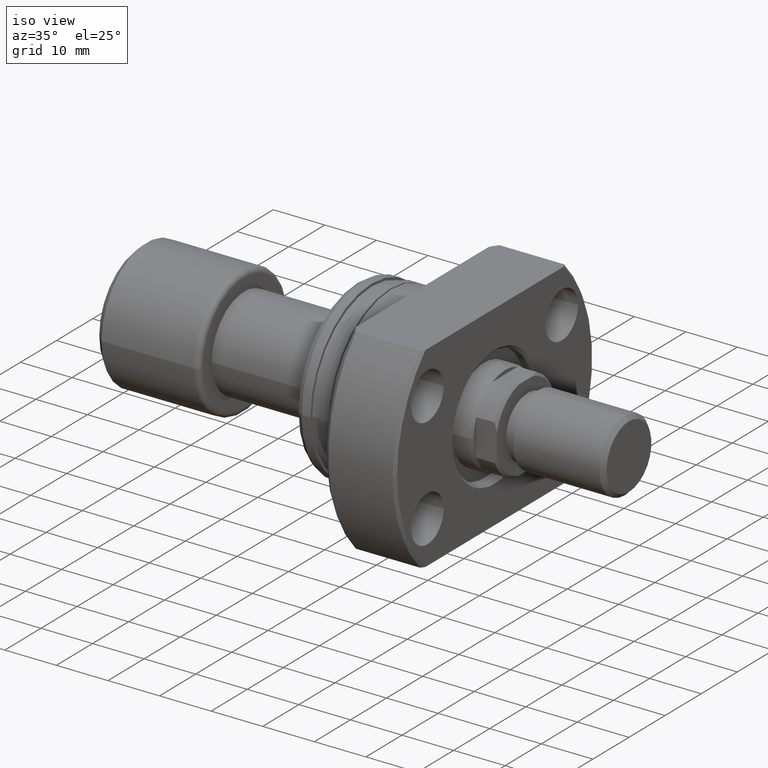
[diagram: clean part render]
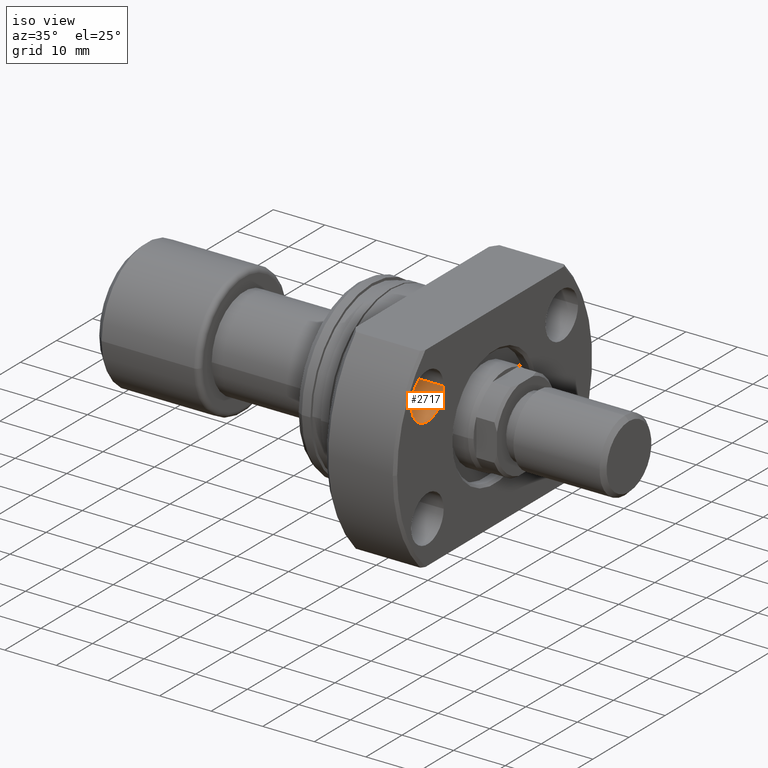
[diagram: same view with one face highlighted and labeled with its STEP entity id]
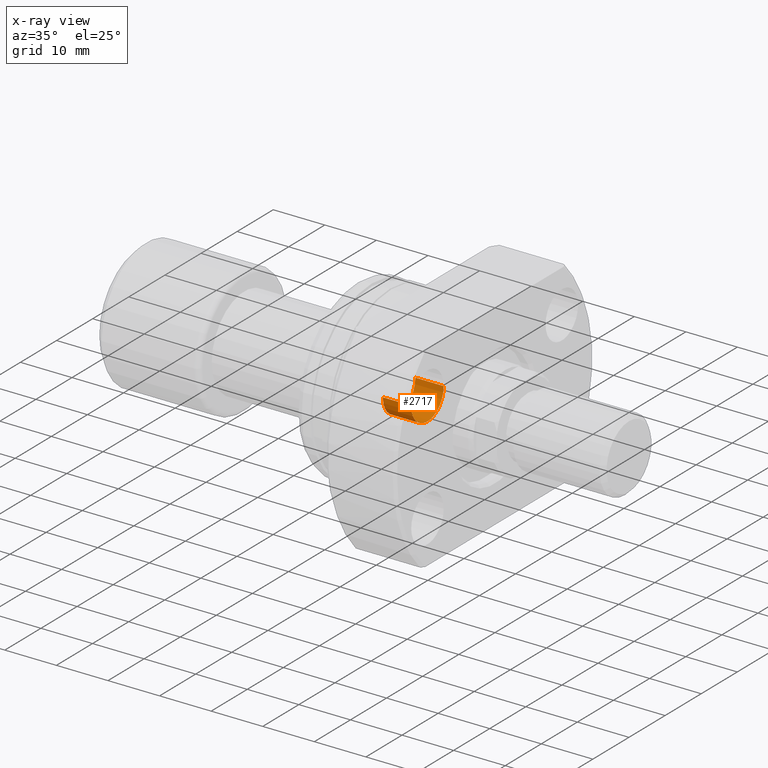
[diagram: x-ray of the same camera — body ghosted, the highlighted face saturated]
A machine part, iso view. The second image highlights one B-rep face of the part: STEP entity #2717.
The next image is the same camera in x-ray: the body ghosted, the highlighted face saturated — about 0% of this face is hidden behind the body in this view.
In plain terms, the highlighted cylindrical surface (edge-blend (fillet) strip) has radius 4.5 mm, axis along (1, -0, 0).
Its self-contained STEP definition (entity closure, byte-faithful):
#10 = FACE_OUTER_BOUND ( 'NONE', #633, .T. ) ;
#203 = LINE ( 'NONE', #1929, #1608 ) ;
#220 = DIRECTION ( 'NONE',  ( 1.000000000000000000, -2.886466111666351885E-14, -0.000000000000000000 ) ) ;
#279 = EDGE_CURVE ( 'NONE', #2113, #3538, #340, .T. ) ;
#340 = CIRCLE ( 'NONE', #2899, 4.500000000000000888 ) ;
#356 = CARTESIAN_POINT ( 'NONE',  ( 20.99999999999933564, -23.10000000000060894, 10.75000000000000000 ) ) ;
#399 = CARTESIAN_POINT ( 'NONE',  ( 26.49999999999933564, -23.10000000000076881, 10.75000000000000000 ) ) ;
#413 = CARTESIAN_POINT ( 'NONE',  ( 20.99999999999933564, -23.10000000000060894, 10.75000000000000000 ) ) ;
#442 = CARTESIAN_POINT ( 'NONE',  ( 26.49999999999946354, -18.60000000000076881, 10.75000000000000000 ) ) ;
#633 = EDGE_LOOP ( 'NONE', ( #1060, #673, #2556, #2500 ) ) ;
#673 = ORIENTED_EDGE ( 'NONE', *, *, #1280, .T. ) ;
#726 = DIRECTION ( 'NONE',  ( 1.000000000000000000, -2.886466111666351885E-14, -0.000000000000000000 ) ) ;
#795 = CARTESIAN_POINT ( 'NONE',  ( 26.49999999999959499, -14.10000000000076881, 10.75000000000000000 ) ) ;
#945 = VECTOR ( 'NONE', #726, 1000.000000000000000 ) ;
#1022 = DIRECTION ( 'NONE',  ( 2.852656382717415620E-14, 1.000000000000000000, 0.000000000000000000 ) ) ;
#1032 = LINE ( 'NONE', #413, #945 ) ;
#1058 = VERTEX_POINT ( 'NONE', #356 ) ;
#1060 = ORIENTED_EDGE ( 'NONE', *, *, #2253, .F. ) ;
#1222 = DIRECTION ( 'NONE',  ( 2.852656382717415620E-14, 1.000000000000000000, 0.000000000000000000 ) ) ;
#1280 = EDGE_CURVE ( 'NONE', #1058, #2113, #1032, .T. ) ;
#1310 = AXIS2_PLACEMENT_3D ( 'NONE', #2912, #1801, #1222 ) ;
#1426 = VERTEX_POINT ( 'NONE', #1924 ) ;
#1471 = CARTESIAN_POINT ( 'NONE',  ( 20.99999999999946354, -18.60000000000060894, 10.75000000000000000 ) ) ;
#1527 = DIRECTION ( 'NONE',  ( 1.000000000000000000, -2.883293662278287419E-14, -3.155443620884046521E-30 ) ) ;
#1608 = VECTOR ( 'NONE', #220, 1000.000000000000000 ) ;
#1713 = DIRECTION ( 'NONE',  ( 1.000000000000000000, -2.886466111666351885E-14, -0.000000000000000000 ) ) ;
#1801 = DIRECTION ( 'NONE',  ( 1.000000000000000000, -2.883293662278287419E-14, -3.155443620884046521E-30 ) ) ;
#1924 = CARTESIAN_POINT ( 'NONE',  ( 20.99999999999959144, -14.10000000000060894, 10.75000000000000000 ) ) ;
#1929 = CARTESIAN_POINT ( 'NONE',  ( 20.99999999999959144, -14.10000000000060894, 10.75000000000000000 ) ) ;
#2113 = VERTEX_POINT ( 'NONE', #399 ) ;
#2253 = EDGE_CURVE ( 'NONE', #1058, #1426, #3029, .T. ) ;
#2260 = DIRECTION ( 'NONE',  ( 2.852656382717415620E-14, 1.000000000000000000, 0.000000000000000000 ) ) ;
#2500 = ORIENTED_EDGE ( 'NONE', *, *, #3527, .F. ) ;
#2556 = ORIENTED_EDGE ( 'NONE', *, *, #279, .T. ) ;
#2717 = ADVANCED_FACE ( 'NONE', ( #10 ), #2849, .F. ) ;
#2849 = CYLINDRICAL_SURFACE ( 'NONE', #3629, 4.500000000000000888 ) ;
#2899 = AXIS2_PLACEMENT_3D ( 'NONE', #442, #1527, #1022 ) ;
#2912 = CARTESIAN_POINT ( 'NONE',  ( 20.99999999999946354, -18.60000000000060894, 10.75000000000000000 ) ) ;
#3029 = CIRCLE ( 'NONE', #1310, 4.500000000000000888 ) ;
#3527 = EDGE_CURVE ( 'NONE', #1426, #3538, #203, .T. ) ;
#3538 = VERTEX_POINT ( 'NONE', #795 ) ;
#3629 = AXIS2_PLACEMENT_3D ( 'NONE', #1471, #1713, #2260 ) ;